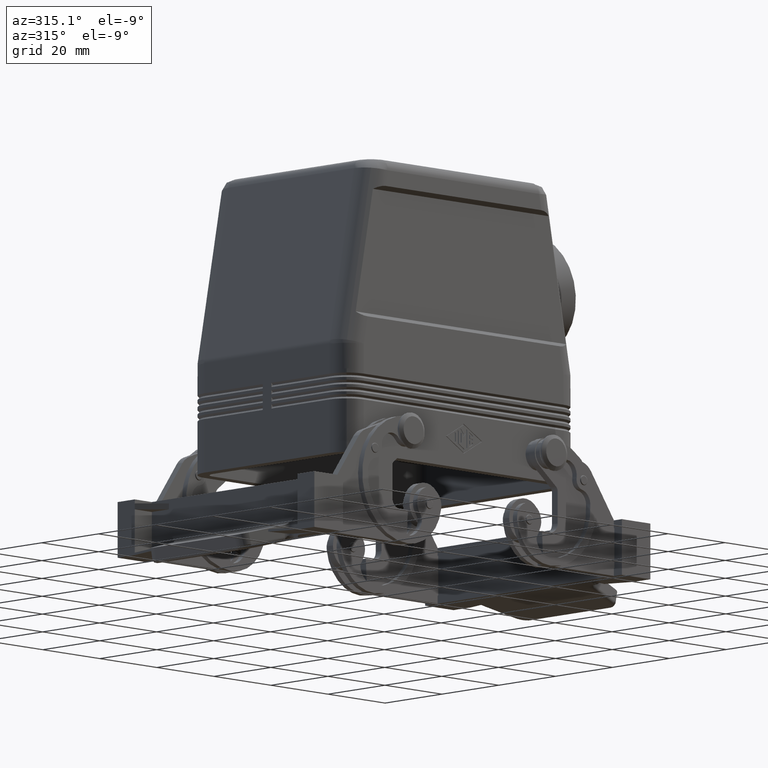
[diagram: clean part render]
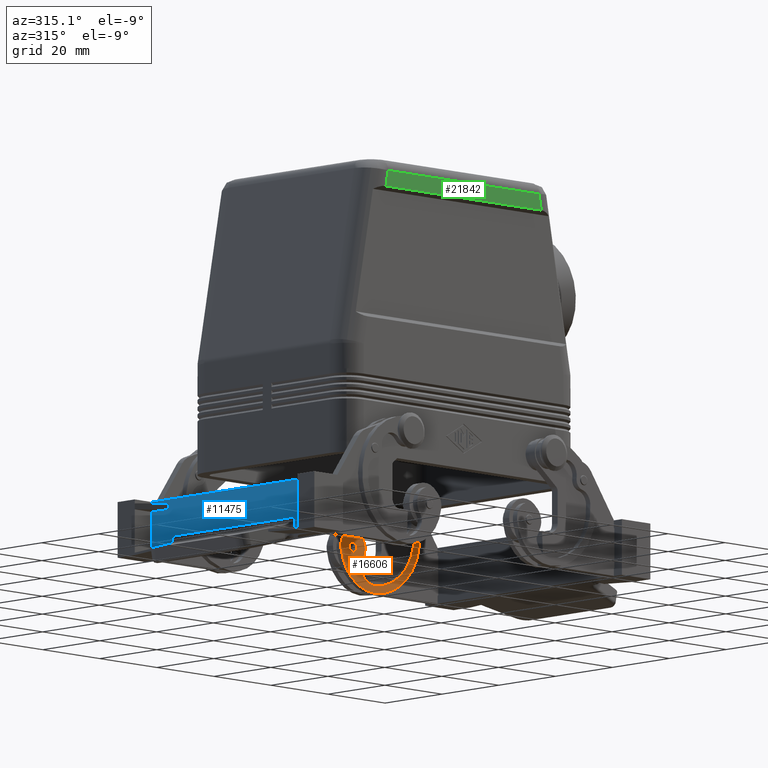
[diagram: same view with three faces highlighted in distinct colors, each labeled with its STEP entity id]
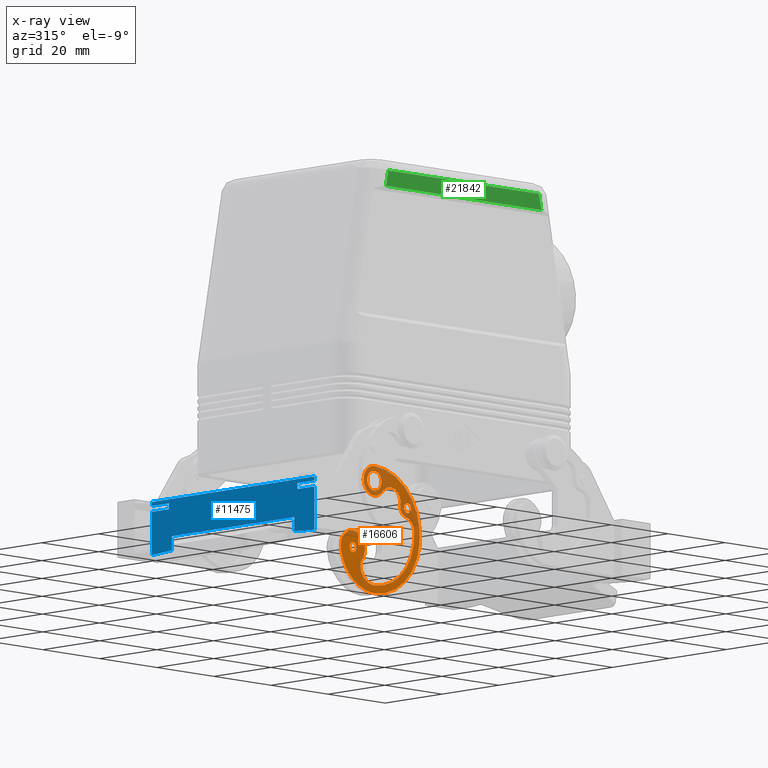
[diagram: x-ray of the same camera — body ghosted, the three highlighted faces saturated]
A machine part, auxiliary view with three faces highlighted in distinct colors.
The next image is the same camera in x-ray (body ghosted, the three faces saturated) — at least one of them is partly hidden behind the body in this view.
Their STEP definitions:

[orange] entity #16606 — the highlighted face is a freeform B-spline surface patch.
#1286=CARTESIAN_POINT('',(36.599999999999994,28.499999999999993,1.749999999999988));
#1287=VERTEX_POINT('',#1286);
#1313=CARTESIAN_POINT('',(36.599999999999994,28.499999999999993,-0.750000000000009));
#1314=VERTEX_POINT('',#1313);
#1322=CARTESIAN_POINT('',(37.658438335505934,28.499999999999996,1.164987435919955));
#1323=VERTEX_POINT('',#1322);
#1324=CARTESIAN_POINT('',(36.599999999999994,28.499999999999996,0.499999999999989));
#1325=DIRECTION('',(0.0,1.0,0.0));
#1326=DIRECTION('',(0.846750668404753,0.0,0.531989948735974));
#1327=AXIS2_PLACEMENT_3D('',#1324,#1325,#1326);
#1328=CIRCLE('',#1327,1.249999999999998);
#1329=EDGE_CURVE('',#1323,#1314,#1328,.T.);
#1331=CARTESIAN_POINT('',(36.599999999999994,28.499999999999996,0.499999999999989));
#1332=DIRECTION('',(0.0,1.0,0.0));
#1333=DIRECTION('',(0.846750668404753,0.0,0.531989948735974));
#1334=AXIS2_PLACEMENT_3D('',#1331,#1332,#1333);
#1335=CIRCLE('',#1334,1.249999999999998);
#1336=EDGE_CURVE('',#1287,#1323,#1335,.T.);
#5482=CARTESIAN_POINT('',(25.0,28.500000000000007,8.500000000000000));
#5483=VERTEX_POINT('',#5482);
#5499=CARTESIAN_POINT('',(25.0,28.500000000000007,3.500000000000001));
#5500=VERTEX_POINT('',#5499);
#5507=CARTESIAN_POINT('',(25.0,28.500000000000007,6.000000000000001));
#5508=DIRECTION('',(0.0,-1.0,0.0));
#5509=DIRECTION('',(0.0,0.0,1.0));
#5510=AXIS2_PLACEMENT_3D('',#5507,#5508,#5509);
#5511=CIRCLE('',#5510,2.500000000000000);
#5512=EDGE_CURVE('',#5500,#5483,#5511,.T.);
#6376=CARTESIAN_POINT('',(17.499999999999996,28.499999999999993,-10.250000000000005));
#6377=VERTEX_POINT('',#6376);
#6403=CARTESIAN_POINT('',(17.499999999999996,28.499999999999993,-12.749999999999998));
#6404=VERTEX_POINT('',#6403);
#6412=CARTESIAN_POINT('',(18.558438335505937,28.499999999999996,-10.835012564080039));
#6413=VERTEX_POINT('',#6412);
#6414=CARTESIAN_POINT('',(17.499999999999996,28.499999999999996,-11.500000000000002));
#6415=DIRECTION('',(0.0,1.000000000000000,0.0));
#6416=DIRECTION('',(0.846750668404754,0.0,0.531989948735973));
#6417=AXIS2_PLACEMENT_3D('',#6414,#6415,#6416);
#6418=CIRCLE('',#6417,1.249999999999997);
#6419=EDGE_CURVE('',#6413,#6404,#6418,.T.);
#6421=CARTESIAN_POINT('',(17.499999999999996,28.499999999999996,-11.500000000000002));
#6422=DIRECTION('',(0.0,1.000000000000000,0.0));
#6423=DIRECTION('',(0.846750668404754,0.0,0.531989948735973));
#6424=AXIS2_PLACEMENT_3D('',#6421,#6422,#6423);
#6425=CIRCLE('',#6424,1.249999999999997);
#6426=EDGE_CURVE('',#6377,#6413,#6425,.T.);
#6519=CARTESIAN_POINT('',(22.059788706663259,28.500000000000000,8.327586206896555));
#6520=VERTEX_POINT('',#6519);
#6529=CARTESIAN_POINT('',(25.0,28.500000000000000,9.749999999999998));
#6530=VERTEX_POINT('',#6529);
#6531=CARTESIAN_POINT('',(25.0,28.500000000000000,6.000000000000001));
#6532=DIRECTION('',(0.0,-1.0,0.0));
#6533=DIRECTION('',(-0.784056344889798,0.0,0.620689655172414));
#6534=AXIS2_PLACEMENT_3D('',#6531,#6532,#6533);
#6535=CIRCLE('',#6534,3.750000000000000);
#6536=EDGE_CURVE('',#6530,#6520,#6535,.T.);
#6582=CARTESIAN_POINT('',(21.706852791878170,28.500000000000000,-10.895939086294423));
#6583=VERTEX_POINT('',#6582);
#6592=CARTESIAN_POINT('',(20.707285188724249,28.500000000000000,-14.288516042304590));
#6593=VERTEX_POINT('',#6592);
#6594=CARTESIAN_POINT('',(17.499999999999996,28.500000000000000,-11.500000000000000));
#6595=DIRECTION('',(0.0,-1.000000000000000,0.0));
#6596=DIRECTION('',(0.989847715736041,0.0,0.142131979695430));
#6597=AXIS2_PLACEMENT_3D('',#6594,#6595,#6596);
#6598=CIRCLE('',#6597,4.250000000000001);
#6599=EDGE_CURVE('',#6593,#6583,#6598,.T.);
#16470=CARTESIAN_POINT('',(41.0,28.500000000000007,-22.250000000000007));
#16471=CARTESIAN_POINT('',(41.0,28.500000000000007,9.750000000000000));
#16472=CARTESIAN_POINT('',(13.249999999999996,28.500000000000007,-22.250000000000007));
#16473=CARTESIAN_POINT('',(13.250000000000000,28.500000000000007,9.750000000000000));
#16474=B_SPLINE_SURFACE_WITH_KNOTS('',1,1,((#16470,#16472),(#16471,#16473)),.UNSPECIFIED.,.F.,.F.,.U.,(2,2),(2,2),(0.0,32.000000000000007),(0.0,27.750000000000004),.UNSPECIFIED.);
#16475=CARTESIAN_POINT('',(25.0,28.500000000000000,-22.250000000000000));
#16476=VERTEX_POINT('',#16475);
#16477=CARTESIAN_POINT('',(25.0,28.500000000000000,-6.250000000000000));
#16478=DIRECTION('',(0.0,-1.0,0.0));
#16479=DIRECTION('',(0.0,0.0,-1.0));
#16480=AXIS2_PLACEMENT_3D('',#16477,#16478,#16479);
#16481=CIRCLE('',#16480,15.999999999999998);
#16482=EDGE_CURVE('',#16476,#6530,#16481,.T.);
#16483=ORIENTED_EDGE('',*,*,#16482,.T.);
#16484=ORIENTED_EDGE('',*,*,#6536,.T.);
#16485=CARTESIAN_POINT('',(27.940211293336734,28.500000000000000,3.672413793103448));
#16486=VERTEX_POINT('',#16485);
#16487=CARTESIAN_POINT('',(25.0,28.500000000000000,6.000000000000001));
#16488=DIRECTION('',(0.0,-1.0,0.0));
#16489=DIRECTION('',(-0.784056344889798,0.0,0.620689655172414));
#16490=AXIS2_PLACEMENT_3D('',#16487,#16488,#16489);
#16491=CIRCLE('',#16490,3.750000000000000);
#16492=EDGE_CURVE('',#6520,#16486,#16491,.T.);
#16493=ORIENTED_EDGE('',*,*,#16492,.T.);
#16494=CARTESIAN_POINT('',(34.135455040592475,28.500000000000000,0.916666666666663));
#16495=VERTEX_POINT('',#16494);
#16496=CARTESIAN_POINT('',(30.684408500451035,28.500000000000000,1.499999999999999));
#16497=DIRECTION('',(0.0,1.0,0.0));
#16498=DIRECTION('',(-0.784056344889798,0.0,0.620689655172414));
#16499=AXIS2_PLACEMENT_3D('',#16496,#16497,#16498);
#16500=CIRCLE('',#16499,3.500000000000000);
#16501=EDGE_CURVE('',#16486,#16495,#16500,.T.);
#16502=ORIENTED_EDGE('',*,*,#16501,.T.);
#16503=CARTESIAN_POINT('',(36.127305116649886,28.500000000000000,-1.954811131342242));
#16504=VERTEX_POINT('',#16503);
#16505=CARTESIAN_POINT('',(36.600488283550654,28.500000000000000,0.499999999999998));
#16506=DIRECTION('',(0.0,-1.0,0.0));
#16507=DIRECTION('',(0.189273266760306,0.0,0.981924452536896));
#16508=AXIS2_PLACEMENT_3D('',#16505,#16506,#16507);
#16509=CIRCLE('',#16508,2.500000000000000);
#16510=EDGE_CURVE('',#16495,#16504,#16509,.T.);
#16511=ORIENTED_EDGE('',*,*,#16510,.T.);
#16512=CARTESIAN_POINT('',(38.953131577318423,28.500000000000000,-5.105395620295163));
#16513=VERTEX_POINT('',#16512);
#16514=CARTESIAN_POINT('',(35.464848682988816,28.500000000000000,-5.391546715221378));
#16515=DIRECTION('',(0.0,1.0,0.0));
#16516=DIRECTION('',(0.189273266760307,0.0,0.981924452536895));
#16517=AXIS2_PLACEMENT_3D('',#16514,#16515,#16516);
#16518=CIRCLE('',#16517,3.500000000000000);
#16519=EDGE_CURVE('',#16504,#16513,#16518,.T.);
#16520=ORIENTED_EDGE('',*,*,#16519,.T.);
#16521=CARTESIAN_POINT('',(25.0,28.500000000000000,-20.250000000000000));
#16522=VERTEX_POINT('',#16521);
#16523=CARTESIAN_POINT('',(25.0,28.500000000000000,-6.250000000000000));
#16524=DIRECTION('',(0.0,1.0,0.0));
#16525=DIRECTION('',(0.996652255522745,0.0,0.081757455693203));
#16526=AXIS2_PLACEMENT_3D('',#16523,#16524,#16525);
#16527=CIRCLE('',#16526,14.000000000000002);
#16528=EDGE_CURVE('',#16513,#16522,#16527,.T.);
#16529=ORIENTED_EDGE('',*,*,#16528,.T.);
#16530=CARTESIAN_POINT('',(20.187847070065239,28.500000000000000,-16.607639193202811));
#16531=VERTEX_POINT('',#16530);
#16532=CARTESIAN_POINT('',(25.0,28.500000000000000,-15.250000000000000));
#16533=DIRECTION('',(0.0,1.0,0.0));
#16534=DIRECTION('',(0.0,0.0,-1.0));
#16535=AXIS2_PLACEMENT_3D('',#16532,#16533,#16534);
#16536=CIRCLE('',#16535,5.0);
#16537=EDGE_CURVE('',#16522,#16531,#16536,.T.);
#16538=ORIENTED_EDGE('',*,*,#16537,.T.);
#16539=CARTESIAN_POINT('',(22.593923535032630,28.500000000000000,-15.928819596601414));
#16540=DIRECTION('',(0.0,1.000000000000000,0.0));
#16541=DIRECTION('',(-0.962430585986952,0.0,-0.271527838640557));
#16542=AXIS2_PLACEMENT_3D('',#16539,#16540,#16541);
#16543=CIRCLE('',#16542,2.500000000000000);
#16544=EDGE_CURVE('',#16531,#6593,#16543,.T.);
#16545=ORIENTED_EDGE('',*,*,#16544,.T.);
#16546=ORIENTED_EDGE('',*,*,#6599,.T.);
#16547=CARTESIAN_POINT('',(13.293147208121823,28.500000000000000,-12.104060913705577));
#16548=VERTEX_POINT('',#16547);
#16549=CARTESIAN_POINT('',(17.499999999999996,28.500000000000000,-11.500000000000000));
#16550=DIRECTION('',(0.0,-1.000000000000000,0.0));
#16551=DIRECTION('',(0.989847715736041,0.0,0.142131979695430));
#16552=AXIS2_PLACEMENT_3D('',#16549,#16550,#16551);
#16553=CIRCLE('',#16552,4.250000000000001);
#16554=EDGE_CURVE('',#6583,#16548,#16553,.T.);
#16555=ORIENTED_EDGE('',*,*,#16554,.T.);
#16556=CARTESIAN_POINT('',(25.0,28.500000000000000,-10.423076923076927));
#16557=DIRECTION('',(0.0,-1.0,0.0));
#16558=DIRECTION('',(0.0,0.0,1.0));
#16559=AXIS2_PLACEMENT_3D('',#16556,#16557,#16558);
#16560=CIRCLE('',#16559,11.826923076923082);
#16561=EDGE_CURVE('',#16548,#16476,#16560,.T.);
#16562=ORIENTED_EDGE('',*,*,#16561,.T.);
#16563=EDGE_LOOP('',(#16483,#16484,#16493,#16502,#16511,#16520,#16529,#16538,#16545,#16546,#16555,#16562));
#16564=FACE_OUTER_BOUND('',#16563,.T.);
#16565=ORIENTED_EDGE('',*,*,#1329,.T.);
#16566=CARTESIAN_POINT('',(36.599999999999994,28.499999999999996,0.499999999999989));
#16567=DIRECTION('',(0.0,1.0,0.0));
#16568=DIRECTION('',(0.846750668404753,0.0,0.531989948735974));
#16569=AXIS2_PLACEMENT_3D('',#16566,#16567,#16568);
#16570=CIRCLE('',#16569,1.249999999999998);
#16571=EDGE_CURVE('',#1314,#1287,#16570,.T.);
#16572=ORIENTED_EDGE('',*,*,#16571,.T.);
#16573=ORIENTED_EDGE('',*,*,#1336,.T.);
#16574=EDGE_LOOP('',(#16565,#16572,#16573));
#16575=FACE_BOUND('',#16574,.T.);
#16576=ORIENTED_EDGE('',*,*,#6419,.T.);
#16577=CARTESIAN_POINT('',(17.499999999999996,28.499999999999996,-11.500000000000002));
#16578=DIRECTION('',(0.0,1.000000000000000,0.0));
#16579=DIRECTION('',(0.846750668404754,0.0,0.531989948735973));
#16580=AXIS2_PLACEMENT_3D('',#16577,#16578,#16579);
#16581=CIRCLE('',#16580,1.249999999999997);
#16582=EDGE_CURVE('',#6404,#6377,#16581,.T.);
#16583=ORIENTED_EDGE('',*,*,#16582,.T.);
#16584=ORIENTED_EDGE('',*,*,#6426,.T.);
#16585=EDGE_LOOP('',(#16576,#16583,#16584));
#16586=FACE_BOUND('',#16585,.T.);
#16587=CARTESIAN_POINT('',(22.500000000000000,28.500000000000000,6.000000000000001));
#16588=VERTEX_POINT('',#16587);
#16589=CARTESIAN_POINT('',(25.0,28.500000000000007,6.000000000000001));
#16590=DIRECTION('',(0.0,-1.0,0.0));
#16591=DIRECTION('',(0.0,0.0,1.0));
#16592=AXIS2_PLACEMENT_3D('',#16589,#16590,#16591);
#16593=CIRCLE('',#16592,2.500000000000000);
#16594=EDGE_CURVE('',#16588,#5500,#16593,.T.);
#16595=ORIENTED_EDGE('',*,*,#16594,.F.);
#16596=CARTESIAN_POINT('',(25.0,28.500000000000007,6.000000000000001));
#16597=DIRECTION('',(0.0,-1.0,0.0));
#16598=DIRECTION('',(0.0,0.0,1.0));
#16599=AXIS2_PLACEMENT_3D('',#16596,#16597,#16598);
#16600=CIRCLE('',#16599,2.500000000000000);
#16601=EDGE_CURVE('',#5483,#16588,#16600,.T.);
#16602=ORIENTED_EDGE('',*,*,#16601,.F.);
#16603=ORIENTED_EDGE('',*,*,#5512,.F.);
#16604=EDGE_LOOP('',(#16595,#16602,#16603));
#16605=FACE_BOUND('',#16604,.T.);
#16606=ADVANCED_FACE('',(#16564,#16575,#16586,#16605),#16474,.T.);

[blue] entity #11475 — the highlighted face is a freeform B-spline surface patch.
#8007=CARTESIAN_POINT('',(-52.900000000000027,21.534653975957866,-17.396038072126249));
#8008=VERTEX_POINT('',#8007);
#8016=CARTESIAN_POINT('',(-52.900000000000020,21.534653975957866,-20.961748662884716));
#8017=VERTEX_POINT('',#8016);
#8018=CARTESIAN_POINT('',(-52.900000000000027,21.534653975957866,-17.396038072126249));
#8019=DIRECTION('',(0.0,0.0,-1.0));
#8020=VECTOR('',#8019,3.565710590758467);
#8021=LINE('',#8018,#8020);
#8022=EDGE_CURVE('',#8008,#8017,#8021,.T.);
#11303=CARTESIAN_POINT('',(-52.900000000000006,28.600000000000012,-21.393883737984947));
#11304=VERTEX_POINT('',#11303);
#11305=CARTESIAN_POINT('',(-52.900000000000006,28.600000000000012,-21.393883737984947));
#11306=DIRECTION('',(-2.007594E-015,-0.998134798421867,0.061048539534858));
#11307=VECTOR('',#11306,7.078548944704702);
#11308=LINE('',#11305,#11307);
#11309=EDGE_CURVE('',#11304,#8017,#11308,.T.);
#11356=CARTESIAN_POINT('',(-52.900000000000027,28.600000000000012,-7.999999999999998));
#11357=CARTESIAN_POINT('',(-52.900000000000027,28.600000000000012,-21.393883737984943));
#11358=CARTESIAN_POINT('',(-52.900000000000013,-28.600000000000019,-7.999999999999998));
#11359=CARTESIAN_POINT('',(-52.900000000000013,-28.600000000000019,-21.393883737984943));
#11360=B_SPLINE_SURFACE_WITH_KNOTS('',1,1,((#11356,#11358),(#11357,#11359)),.UNSPECIFIED.,.F.,.F.,.U.,(2,2),(2,2),(0.0,13.393883737984945),(0.0,57.200000000000031),.UNSPECIFIED.);
#11361=CARTESIAN_POINT('',(-52.900000000000006,-21.534653975957873,-17.396038072126242));
#11362=VERTEX_POINT('',#11361);
#11363=CARTESIAN_POINT('',(-52.900000000000006,-21.534653975957873,-17.396038072126242));
#11364=DIRECTION('',(0.0,1.0,0.0));
#11365=VECTOR('',#11364,43.069307951915739);
#11366=LINE('',#11363,#11365);
#11367=EDGE_CURVE('',#11362,#8008,#11366,.T.);
#11368=ORIENTED_EDGE('',*,*,#11367,.F.);
#11369=CARTESIAN_POINT('',(-52.900000000000020,-21.534653975957873,-20.961748662884720));
#11370=VERTEX_POINT('',#11369);
#11371=CARTESIAN_POINT('',(-52.900000000000020,-21.534653975957873,-20.961748662884720));
#11372=DIRECTION('',(0.0,0.0,1.0));
#11373=VECTOR('',#11372,3.565710590758478);
#11374=LINE('',#11371,#11373);
#11375=EDGE_CURVE('',#11370,#11362,#11374,.T.);
#11376=ORIENTED_EDGE('',*,*,#11375,.F.);
#11377=CARTESIAN_POINT('',(-52.900000000000006,-28.600000000000012,-21.393883737984947));
#11378=VERTEX_POINT('',#11377);
#11379=CARTESIAN_POINT('',(-52.900000000000020,-21.534653975957873,-20.961748662884720));
#11380=DIRECTION('',(2.007594E-015,-0.998134798421867,-0.061048539534857));
#11381=VECTOR('',#11380,7.078548944704694);
#11382=LINE('',#11379,#11381);
#11383=EDGE_CURVE('',#11370,#11378,#11382,.T.);
#11384=ORIENTED_EDGE('',*,*,#11383,.T.);
#11385=CARTESIAN_POINT('',(-52.899999999999999,-28.600000000000012,-10.500000000000000));
#11386=VERTEX_POINT('',#11385);
#11387=CARTESIAN_POINT('',(-52.900000000000006,-28.600000000000012,-21.393883737984947));
#11388=DIRECTION('',(0.0,0.0,1.0));
#11389=VECTOR('',#11388,10.893883737984947);
#11390=LINE('',#11387,#11389);
#11391=EDGE_CURVE('',#11378,#11386,#11390,.T.);
#11392=ORIENTED_EDGE('',*,*,#11391,.T.);
#11393=CARTESIAN_POINT('',(-52.899999999999999,-22.599999999999998,-10.500000000000000));
#11394=VERTEX_POINT('',#11393);
#11395=CARTESIAN_POINT('',(-52.899999999999999,-28.600000000000012,-10.500000000000000));
#11396=DIRECTION('',(0.0,1.0,0.0));
#11397=VECTOR('',#11396,6.000000000000014);
#11398=LINE('',#11395,#11397);
#11399=EDGE_CURVE('',#11386,#11394,#11398,.T.);
#11400=ORIENTED_EDGE('',*,*,#11399,.T.);
#11401=CARTESIAN_POINT('',(-52.899999999999999,-22.599999999999998,-9.000000000000002));
#11402=VERTEX_POINT('',#11401);
#11403=CARTESIAN_POINT('',(-52.899999999999999,-22.599999999999998,-10.500000000000000));
#11404=DIRECTION('',(0.0,0.0,1.0));
#11405=VECTOR('',#11404,1.499999999999998);
#11406=LINE('',#11403,#11405);
#11407=EDGE_CURVE('',#11394,#11402,#11406,.T.);
#11408=ORIENTED_EDGE('',*,*,#11407,.T.);
#11409=CARTESIAN_POINT('',(-52.899999999999999,-28.600000000000012,-9.000000000000002));
#11410=VERTEX_POINT('',#11409);
#11411=CARTESIAN_POINT('',(-52.899999999999999,-22.599999999999998,-9.000000000000002));
#11412=DIRECTION('',(0.0,-1.0,0.0));
#11413=VECTOR('',#11412,6.000000000000014);
#11414=LINE('',#11411,#11413);
#11415=EDGE_CURVE('',#11402,#11410,#11414,.T.);
#11416=ORIENTED_EDGE('',*,*,#11415,.T.);
#11417=CARTESIAN_POINT('',(-52.900000000000006,-28.600000000000012,-8.0));
#11418=VERTEX_POINT('',#11417);
#11419=CARTESIAN_POINT('',(-52.899999999999999,-28.600000000000012,-9.000000000000002));
#11420=DIRECTION('',(0.0,0.0,1.0));
#11421=VECTOR('',#11420,1.000000000000002);
#11422=LINE('',#11419,#11421);
#11423=EDGE_CURVE('',#11410,#11418,#11422,.T.);
#11424=ORIENTED_EDGE('',*,*,#11423,.T.);
#11425=CARTESIAN_POINT('',(-52.900000000000006,28.600000000000012,-8.0));
#11426=VERTEX_POINT('',#11425);
#11427=CARTESIAN_POINT('',(-52.900000000000006,-28.600000000000012,-8.0));
#11428=DIRECTION('',(0.0,1.0,0.0));
#11429=VECTOR('',#11428,57.200000000000024);
#11430=LINE('',#11427,#11429);
#11431=EDGE_CURVE('',#11418,#11426,#11430,.T.);
#11432=ORIENTED_EDGE('',*,*,#11431,.T.);
#11433=CARTESIAN_POINT('',(-52.899999999999999,28.600000000000012,-9.000000000000002));
#11434=VERTEX_POINT('',#11433);
#11435=CARTESIAN_POINT('',(-52.899999999999999,28.600000000000012,-9.000000000000002));
#11436=DIRECTION('',(0.0,0.0,1.0));
#11437=VECTOR('',#11436,1.000000000000002);
#11438=LINE('',#11435,#11437);
#11439=EDGE_CURVE('',#11434,#11426,#11438,.T.);
#11440=ORIENTED_EDGE('',*,*,#11439,.F.);
#11441=CARTESIAN_POINT('',(-52.899999999999999,22.599999999999998,-9.000000000000002));
#11442=VERTEX_POINT('',#11441);
#11443=CARTESIAN_POINT('',(-52.899999999999999,28.600000000000012,-9.000000000000002));
#11444=DIRECTION('',(0.0,-1.0,0.0));
#11445=VECTOR('',#11444,6.000000000000014);
#11446=LINE('',#11443,#11445);
#11447=EDGE_CURVE('',#11434,#11442,#11446,.T.);
#11448=ORIENTED_EDGE('',*,*,#11447,.T.);
#11449=CARTESIAN_POINT('',(-52.899999999999999,22.599999999999998,-10.500000000000000));
#11450=VERTEX_POINT('',#11449);
#11451=CARTESIAN_POINT('',(-52.899999999999999,22.599999999999998,-9.000000000000002));
#11452=DIRECTION('',(0.0,0.0,-1.0));
#11453=VECTOR('',#11452,1.499999999999998);
#11454=LINE('',#11451,#11453);
#11455=EDGE_CURVE('',#11442,#11450,#11454,.T.);
#11456=ORIENTED_EDGE('',*,*,#11455,.T.);
#11457=CARTESIAN_POINT('',(-52.899999999999999,28.600000000000012,-10.500000000000000));
#11458=VERTEX_POINT('',#11457);
#11459=CARTESIAN_POINT('',(-52.899999999999999,22.599999999999998,-10.500000000000000));
#11460=DIRECTION('',(0.0,1.0,0.0));
#11461=VECTOR('',#11460,6.000000000000014);
#11462=LINE('',#11459,#11461);
#11463=EDGE_CURVE('',#11450,#11458,#11462,.T.);
#11464=ORIENTED_EDGE('',*,*,#11463,.T.);
#11465=CARTESIAN_POINT('',(-52.900000000000006,28.600000000000012,-21.393883737984947));
#11466=DIRECTION('',(0.0,0.0,1.0));
#11467=VECTOR('',#11466,10.893883737984947);
#11468=LINE('',#11465,#11467);
#11469=EDGE_CURVE('',#11304,#11458,#11468,.T.);
#11470=ORIENTED_EDGE('',*,*,#11469,.F.);
#11471=ORIENTED_EDGE('',*,*,#11309,.T.);
#11472=ORIENTED_EDGE('',*,*,#8022,.F.);
#11473=EDGE_LOOP('',(#11368,#11376,#11384,#11392,#11400,#11408,#11416,#11424,#11432,#11440,#11448,#11456,#11464,#11470,#11471,#11472));
#11474=FACE_OUTER_BOUND('',#11473,.T.);
#11475=ADVANCED_FACE('',(#11474),#11360,.T.);

[green] entity #21842 — the highlighted planar face has unit normal (0, -1, 0).
#4334=CARTESIAN_POINT('',(26.465453899231292,-28.0,72.0));
#4335=VERTEX_POINT('',#4334);
#4343=CARTESIAN_POINT('',(27.231411346039799,-28.0,68.0));
#4344=VERTEX_POINT('',#4343);
#4345=CARTESIAN_POINT('',(26.465453899231292,-28.0,72.0));
#4346=DIRECTION('',(0.188072270787857,0.0,-0.982155191892147));
#4347=VECTOR('',#4346,4.072676123916731);
#4348=LINE('',#4345,#4347);
#4349=EDGE_CURVE('',#4335,#4344,#4348,.T.);
#4410=CARTESIAN_POINT('',(-26.465453899231282,-28.0,72.000000000000014));
#4411=VERTEX_POINT('',#4410);
#4419=CARTESIAN_POINT('',(-26.465453899231282,-28.0,72.000000000000014));
#4420=DIRECTION('',(1.0,0.0,0.0));
#4421=VECTOR('',#4420,52.930907798462570);
#4422=LINE('',#4419,#4421);
#4423=EDGE_CURVE('',#4411,#4335,#4422,.T.);
#4600=CARTESIAN_POINT('',(-27.231411346039806,-28.0,68.0));
#4601=VERTEX_POINT('',#4600);
#4609=CARTESIAN_POINT('',(-27.231411346039806,-28.0,68.0));
#4610=DIRECTION('',(0.188072270787860,0.0,0.982155191892146));
#4611=VECTOR('',#4610,4.072676123916748);
#4612=LINE('',#4609,#4611);
#4613=EDGE_CURVE('',#4601,#4411,#4612,.T.);
#21826=CARTESIAN_POINT('',(41.000000000000014,-28.0,0.0));
#21827=DIRECTION('',(0.0,-1.0,0.0));
#21828=DIRECTION('',(0.0,0.0,-1.0));
#21829=AXIS2_PLACEMENT_3D('',#21826,#21827,#21828);
#21830=PLANE('',#21829);
#21831=ORIENTED_EDGE('',*,*,#4613,.F.);
#21832=CARTESIAN_POINT('',(-27.231411346039806,-28.0,68.0));
#21833=DIRECTION('',(1.0,0.0,0.0));
#21834=VECTOR('',#21833,54.462822692079605);
#21835=LINE('',#21832,#21834);
#21836=EDGE_CURVE('',#4601,#4344,#21835,.T.);
#21837=ORIENTED_EDGE('',*,*,#21836,.T.);
#21838=ORIENTED_EDGE('',*,*,#4349,.F.);
#21839=ORIENTED_EDGE('',*,*,#4423,.F.);
#21840=EDGE_LOOP('',(#21831,#21837,#21838,#21839));
#21841=FACE_OUTER_BOUND('',#21840,.T.);
#21842=ADVANCED_FACE('',(#21841),#21830,.T.);